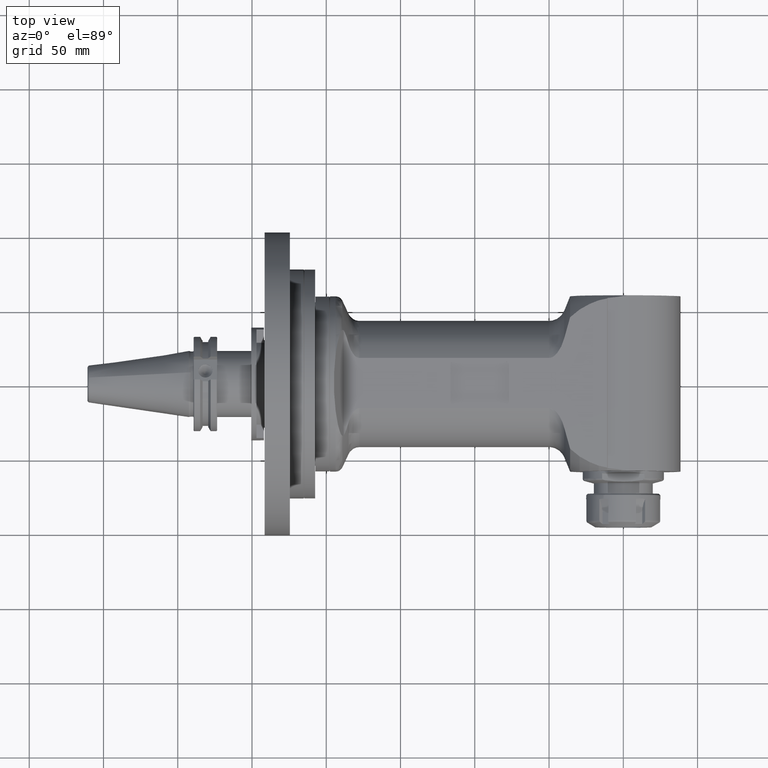
[diagram: clean part render]
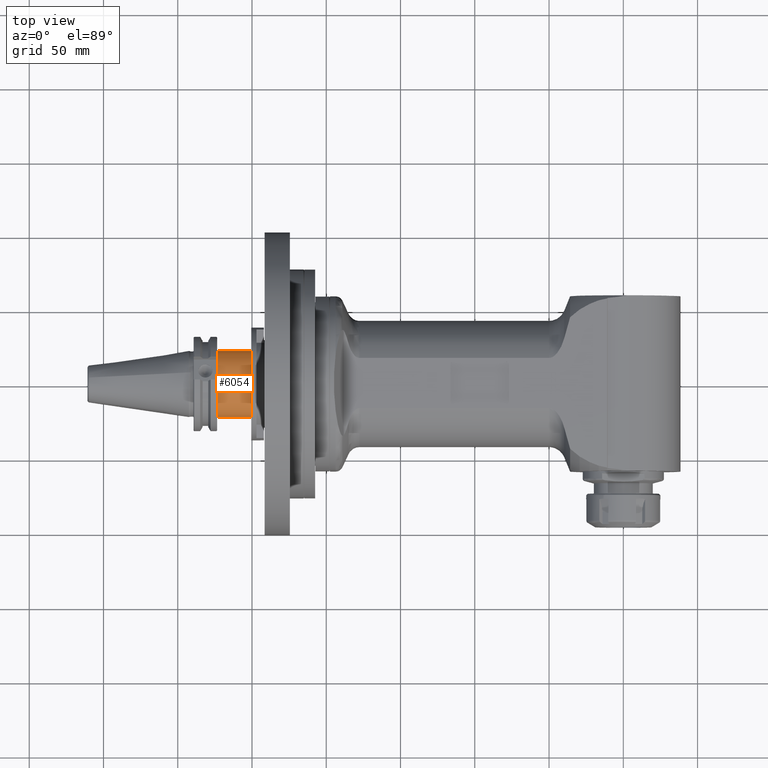
[diagram: same view with one face highlighted and labeled with its STEP entity id]
A machine part, top view. The second image highlights one B-rep face of the part: STEP entity #6054.
In plain terms, the highlighted cylindrical surface (bore or boss wall) has radius 22.225 mm, axis along (1, 0, 0).
Its self-contained STEP definition (entity closure, byte-faithful):
#158=CYLINDRICAL_SURFACE('',#6817,22.225);
#818=FACE_OUTER_BOUND('',#1261,.T.);
#1261=EDGE_LOOP('',(#5384,#5385,#5386,#5387));
#1588=CIRCLE('',#6743,22.225);
#1626=CIRCLE('',#6818,22.225);
#1976=LINE('',#11164,#2320);
#2320=VECTOR('',#8520,22.225);
#2840=VERTEX_POINT('',#10939);
#2882=VERTEX_POINT('',#11162);
#3653=EDGE_CURVE('',#2840,#2840,#1588,.T.);
#3725=EDGE_CURVE('',#2882,#2882,#1626,.T.);
#3726=EDGE_CURVE('',#2882,#2840,#1976,.T.);
#5384=ORIENTED_EDGE('',*,*,#3725,.F.);
#5385=ORIENTED_EDGE('',*,*,#3726,.T.);
#5386=ORIENTED_EDGE('',*,*,#3653,.F.);
#5387=ORIENTED_EDGE('',*,*,#3726,.F.);
#6054=ADVANCED_FACE('',(#818),#158,.T.);
#6743=AXIS2_PLACEMENT_3D('',#10940,#8342,#8343);
#6817=AXIS2_PLACEMENT_3D('',#11161,#8516,#8517);
#6818=AXIS2_PLACEMENT_3D('',#11163,#8518,#8519);
#8342=DIRECTION('center_axis',(1.,0.,0.));
#8343=DIRECTION('ref_axis',(0.,1.,0.));
#8516=DIRECTION('center_axis',(-1.,0.,0.));
#8517=DIRECTION('ref_axis',(0.,1.,0.));
#8518=DIRECTION('center_axis',(-1.,0.,0.));
#8519=DIRECTION('ref_axis',(0.,-1.,0.));
#8520=DIRECTION('',(1.,0.,0.));
#10939=CARTESIAN_POINT('',(22.95,-22.225,2.72177751110499E-15));
#10940=CARTESIAN_POINT('Origin',(22.95,0.,0.));
#11161=CARTESIAN_POINT('Origin',(17.475,0.,0.));
#11162=CARTESIAN_POINT('',(-1.77635683940025E-14,-22.225,2.72177751110499E-15));
#11163=CARTESIAN_POINT('Origin',(-1.7763568394E-14,0.,0.));
#11164=CARTESIAN_POINT('',(17.475,-22.225,2.72177751110499E-15));